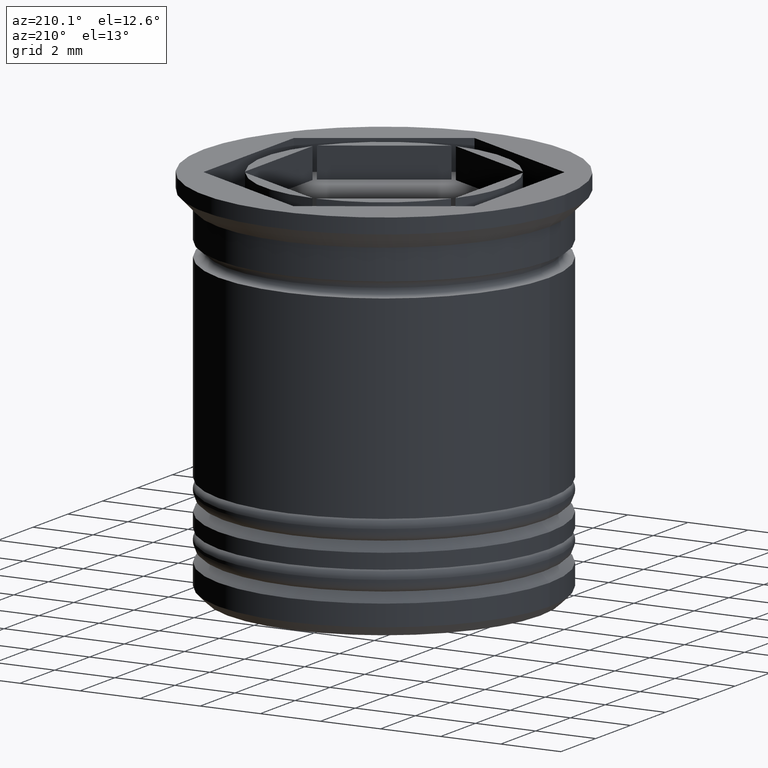
[diagram: clean part render]
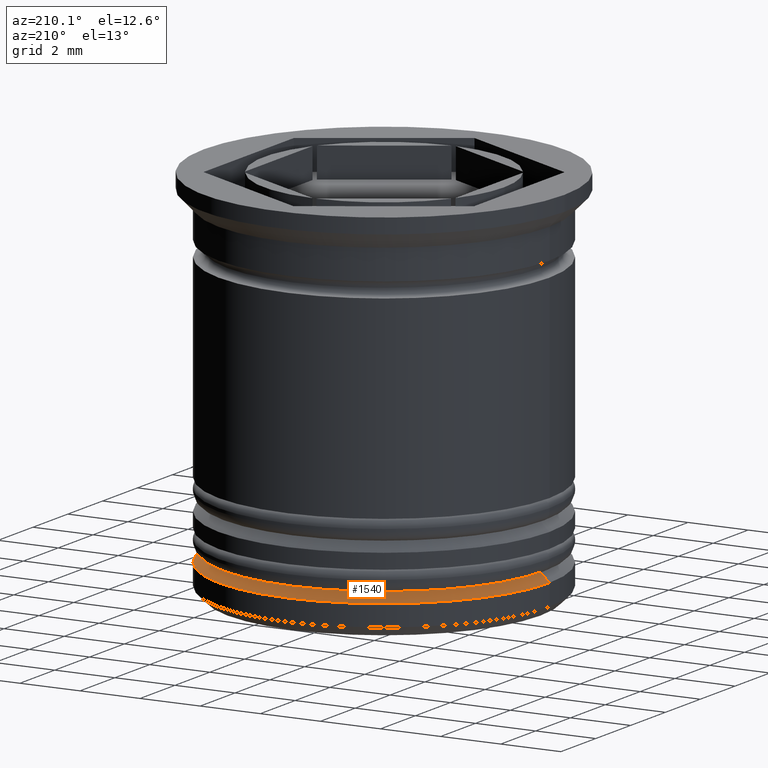
[diagram: same view with one face highlighted and labeled with its STEP entity id]
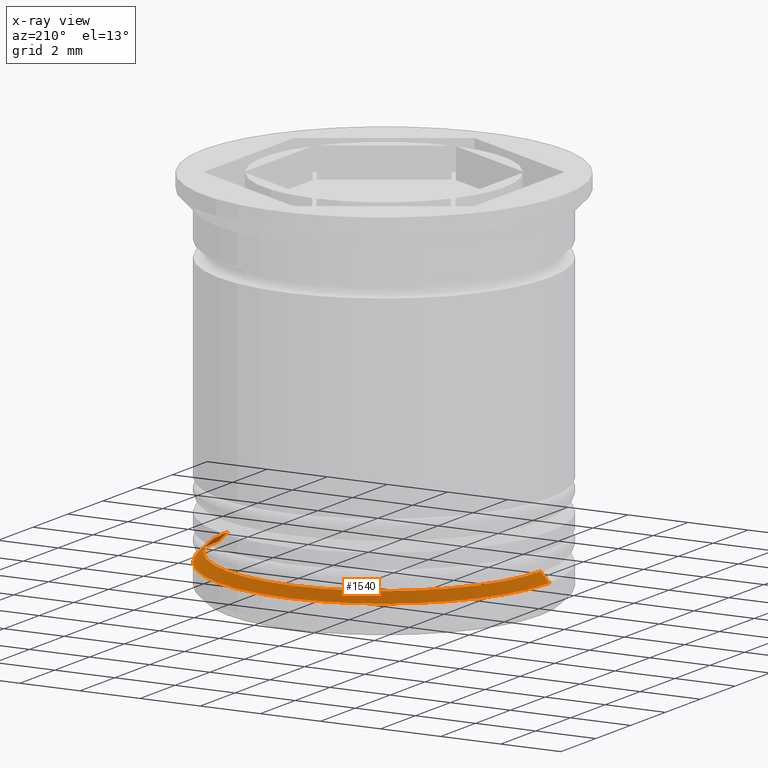
[diagram: x-ray of the same camera — body ghosted, the highlighted face saturated]
A machine part, auxiliary view. The second image highlights one B-rep face of the part: STEP entity #1540.
The next image is the same camera in x-ray: the body ghosted, the highlighted face saturated — about 2% of this face is hidden behind the body in this view.
In plain terms, the highlighted conical surface has half-angle 45 deg.
Its self-contained STEP definition (entity closure, byte-faithful):
#17 = DIRECTION ( 'NONE',  ( -1.000000000000000000, 0.000000000000000000, 0.000000000000000000 ) ) ;
#102 = ORIENTED_EDGE ( 'NONE', *, *, #1612, .F. ) ;
#133 = FACE_OUTER_BOUND ( 'NONE', #1545, .T. ) ;
#148 = AXIS2_PLACEMENT_3D ( 'NONE', #1303, #1159, #858 ) ;
#234 = VECTOR ( 'NONE', #1349, 1000.000000000000000 ) ;
#383 = CARTESIAN_POINT ( 'NONE',  ( 5.200000000000000178, 0.000000000000000000, -11.20000000000000639 ) ) ;
#470 = EDGE_CURVE ( 'NONE', #1277, #1826, #670, .T. ) ;
#530 = CIRCLE ( 'NONE', #839, 5.500000000000001776 ) ;
#608 = ORIENTED_EDGE ( 'NONE', *, *, #1145, .F. ) ;
#621 = CIRCLE ( 'NONE', #1042, 5.200000000000000178 ) ;
#670 = LINE ( 'NONE', #1288, #1876 ) ;
#699 = EDGE_CURVE ( 'NONE', #1277, #741, #621, .T. ) ;
#736 = ORIENTED_EDGE ( 'NONE', *, *, #470, .T. ) ;
#741 = VERTEX_POINT ( 'NONE', #1723 ) ;
#809 = CARTESIAN_POINT ( 'NONE',  ( 0.000000000000000000, 0.000000000000000000, -11.20000000000000639 ) ) ;
#839 = AXIS2_PLACEMENT_3D ( 'NONE', #1207, #1676, #1324 ) ;
#858 = DIRECTION ( 'NONE',  ( -1.000000000000000000, 0.000000000000000000, 0.000000000000000000 ) ) ;
#887 = CARTESIAN_POINT ( 'NONE',  ( 5.500000000000001776, 0.000000000000000000, -11.50000000000000533 ) ) ;
#912 = ORIENTED_EDGE ( 'NONE', *, *, #699, .F. ) ;
#1042 = AXIS2_PLACEMENT_3D ( 'NONE', #809, #1396, #17 ) ;
#1145 = EDGE_CURVE ( 'NONE', #741, #1228, #1321, .T. ) ;
#1159 = DIRECTION ( 'NONE',  ( 0.000000000000000000, 0.000000000000000000, -1.000000000000000000 ) ) ;
#1207 = CARTESIAN_POINT ( 'NONE',  ( 0.000000000000000000, 0.000000000000000000, -11.50000000000000533 ) ) ;
#1228 = VERTEX_POINT ( 'NONE', #1902 ) ;
#1232 = CONICAL_SURFACE ( 'NONE', #148, 4.999999999999992006, 0.7853981633974533860 ) ;
#1277 = VERTEX_POINT ( 'NONE', #383 ) ;
#1288 = CARTESIAN_POINT ( 'NONE',  ( 4.999999999999992006, 6.123233995736756422E-16, -11.00000000000000178 ) ) ;
#1303 = CARTESIAN_POINT ( 'NONE',  ( 0.000000000000000000, 0.000000000000000000, -11.00000000000000178 ) ) ;
#1321 = LINE ( 'NONE', #1504, #234 ) ;
#1324 = DIRECTION ( 'NONE',  ( -1.000000000000000000, 0.000000000000000000, 0.000000000000000000 ) ) ;
#1349 = DIRECTION ( 'NONE',  ( -0.7071067811865512365, 0.000000000000000000, -0.7071067811865439090 ) ) ;
#1396 = DIRECTION ( 'NONE',  ( -0.000000000000000000, -0.000000000000000000, 1.000000000000000000 ) ) ;
#1504 = CARTESIAN_POINT ( 'NONE',  ( -4.999999999999992006, 0.000000000000000000, -11.00000000000000178 ) ) ;
#1540 = ADVANCED_FACE ( 'NONE', ( #133 ), #1232, .T. ) ;
#1545 = EDGE_LOOP ( 'NONE', ( #912, #736, #102, #608 ) ) ;
#1607 = DIRECTION ( 'NONE',  ( 0.7071067811865512365, 8.659560562354978464E-17, -0.7071067811865439090 ) ) ;
#1612 = EDGE_CURVE ( 'NONE', #1228, #1826, #530, .T. ) ;
#1676 = DIRECTION ( 'NONE',  ( 0.000000000000000000, 0.000000000000000000, -1.000000000000000000 ) ) ;
#1723 = CARTESIAN_POINT ( 'NONE',  ( -5.200000000000000178, 6.368163355566236381E-16, -11.20000000000000639 ) ) ;
#1826 = VERTEX_POINT ( 'NONE', #887 ) ;
#1876 = VECTOR ( 'NONE', #1607, 1000.000000000000000 ) ;
#1902 = CARTESIAN_POINT ( 'NONE',  ( -5.500000000000001776, 6.735557395310443995E-16, -11.50000000000000533 ) ) ;